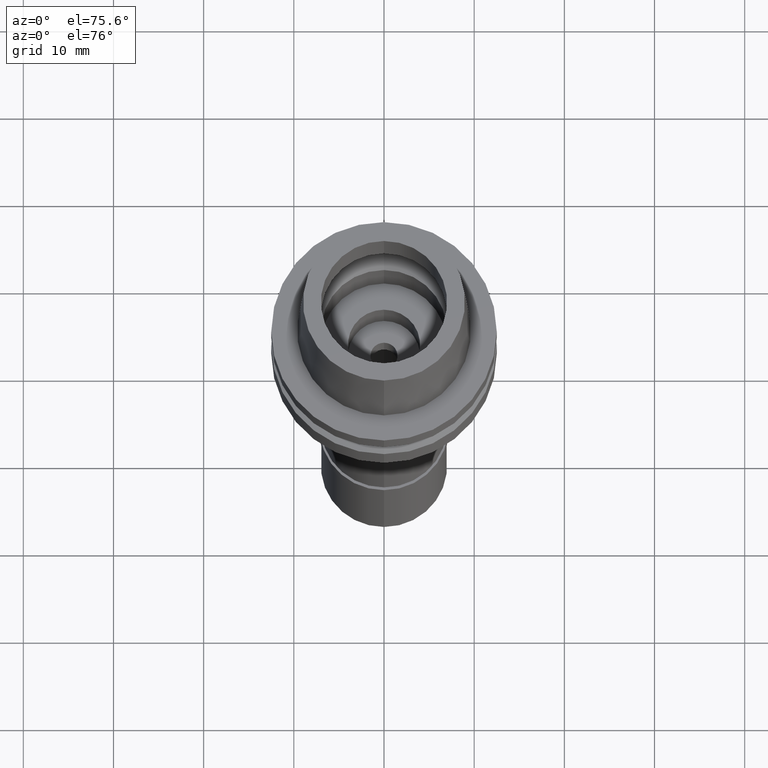
[diagram: clean part render]
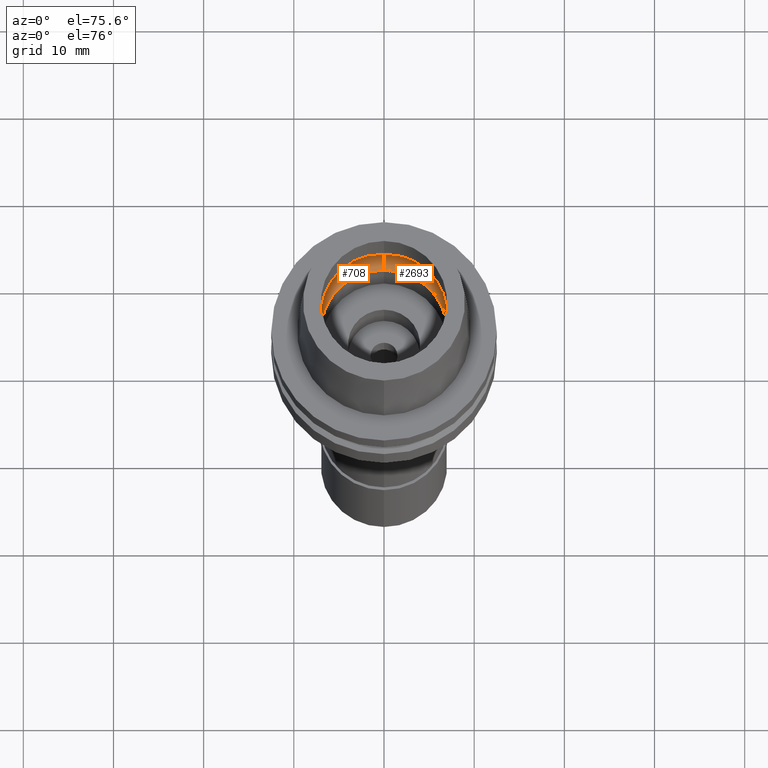
[diagram: same view with one multi-face feature highlighted, each face labeled with its STEP entity id]
A machine part, auxiliary view. The highlighted faces form ONE feature: a constant-radius fillet chain: 2 tangent blend faces with common blend radius 3 mm. The faces share edges in the B-rep.
Their STEP definitions:
[1] entity #2693 (Torus):
#4 = CARTESIAN_POINT ( 'NONE',  ( 0.0000000000000000000, 7.000000000000000000, 0.05000000000000000278 ) ) ;
#31 = ORIENTED_EDGE ( 'NONE', *, *, #655, .T. ) ;
#115 = AXIS2_PLACEMENT_3D ( 'NONE', #869, #1706, #856 ) ;
#137 = ORIENTED_EDGE ( 'NONE', *, *, #2144, .F. ) ;
#191 = CARTESIAN_POINT ( 'NONE',  ( 0.0000000000000000000, 5.200000000000000178, 2.449999999999999734 ) ) ;
#280 = AXIS2_PLACEMENT_3D ( 'NONE', #2355, #1104, #722 ) ;
#489 = CARTESIAN_POINT ( 'NONE',  ( 0.0000000000000000000, 0.0000000000000000000, 0.05000000000000000278 ) ) ;
#582 = VERTEX_POINT ( 'NONE', #2082 ) ;
#602 = CIRCLE ( 'NONE', #115, 8.200000000000001066 ) ;
#612 = CARTESIAN_POINT ( 'NONE',  ( 0.0000000000000000000, 8.200000000000001066, 2.449999999999999734 ) ) ;
#655 = EDGE_CURVE ( 'NONE', #1247, #582, #890, .T. ) ;
#684 = CARTESIAN_POINT ( 'NONE',  ( 0.0000000000000000000, -7.000000000000000000, 0.05000000000000000278 ) ) ;
#722 = DIRECTION ( 'NONE',  ( 0.0000000000000000000, 1.000000000000000000, 0.0000000000000000000 ) ) ;
#731 = CIRCLE ( 'NONE', #1065, 3.000000000000000000 ) ;
#825 = DIRECTION ( 'NONE',  ( 0.0000000000000000000, 0.5999999999999998668, -0.8000000000000001554 ) ) ;
#848 = DIRECTION ( 'NONE',  ( 1.000000000000000000, 0.0000000000000000000, 0.0000000000000000000 ) ) ;
#856 = DIRECTION ( 'NONE',  ( 0.0000000000000000000, 1.000000000000000000, 0.0000000000000000000 ) ) ;
#869 = CARTESIAN_POINT ( 'NONE',  ( 0.0000000000000000000, 0.0000000000000000000, 2.449999999999999734 ) ) ;
#890 = CIRCLE ( 'NONE', #1804, 3.000000000000000000 ) ;
#929 = FACE_OUTER_BOUND ( 'NONE', #2357, .T. ) ;
#1065 = AXIS2_PLACEMENT_3D ( 'NONE', #191, #848, #825 ) ;
#1096 = DIRECTION ( 'NONE',  ( 0.0000000000000000000, -0.5999999999999998668, -0.8000000000000001554 ) ) ;
#1104 = DIRECTION ( 'NONE',  ( 0.0000000000000000000, 0.0000000000000000000, 1.000000000000000000 ) ) ;
#1175 = VERTEX_POINT ( 'NONE', #4 ) ;
#1247 = VERTEX_POINT ( 'NONE', #684 ) ;
#1303 = DIRECTION ( 'NONE',  ( 0.0000000000000000000, 0.0000000000000000000, 1.000000000000000000 ) ) ;
#1597 = AXIS2_PLACEMENT_3D ( 'NONE', #489, #1303, #2349 ) ;
#1611 = EDGE_CURVE ( 'NONE', #1175, #1710, #731, .T. ) ;
#1693 = ORIENTED_EDGE ( 'NONE', *, *, #2040, .F. ) ;
#1706 = DIRECTION ( 'NONE',  ( 0.0000000000000000000, 0.0000000000000000000, -1.000000000000000000 ) ) ;
#1710 = VERTEX_POINT ( 'NONE', #612 ) ;
#1733 = CARTESIAN_POINT ( 'NONE',  ( 0.0000000000000000000, -5.200000000000000178, 2.449999999999999734 ) ) ;
#1804 = AXIS2_PLACEMENT_3D ( 'NONE', #1733, #1932, #1096 ) ;
#1932 = DIRECTION ( 'NONE',  ( -1.000000000000000000, 0.0000000000000000000, 0.0000000000000000000 ) ) ;
#2040 = EDGE_CURVE ( 'NONE', #1247, #1175, #2067, .T. ) ;
#2067 = CIRCLE ( 'NONE', #1597, 7.000000000000000000 ) ;
#2082 = CARTESIAN_POINT ( 'NONE',  ( 0.0000000000000000000, -8.200000000000001066, 2.449999999999999734 ) ) ;
#2144 = EDGE_CURVE ( 'NONE', #1710, #582, #602, .T. ) ;
#2200 = ORIENTED_EDGE ( 'NONE', *, *, #1611, .F. ) ;
#2349 = DIRECTION ( 'NONE',  ( 0.0000000000000000000, -1.000000000000000000, 0.0000000000000000000 ) ) ;
#2355 = CARTESIAN_POINT ( 'NONE',  ( 0.0000000000000000000, 0.0000000000000000000, 2.449999999999999734 ) ) ;
#2357 = EDGE_LOOP ( 'NONE', ( #1693, #31, #137, #2200 ) ) ;
#2459 = TOROIDAL_SURFACE ( 'NONE', #280, 5.200000000000000178, 3.000000000000000000 ) ;
#2693 = ADVANCED_FACE ( 'NONE', ( #929 ), #2459, .F. ) ;
[2] entity #708 (Torus):
#4 = CARTESIAN_POINT ( 'NONE',  ( 0.0000000000000000000, 7.000000000000000000, 0.05000000000000000278 ) ) ;
#184 = DIRECTION ( 'NONE',  ( 0.0000000000000000000, -1.000000000000000000, 0.0000000000000000000 ) ) ;
#191 = CARTESIAN_POINT ( 'NONE',  ( 0.0000000000000000000, 5.200000000000000178, 2.449999999999999734 ) ) ;
#276 = CIRCLE ( 'NONE', #759, 8.200000000000001066 ) ;
#360 = ORIENTED_EDGE ( 'NONE', *, *, #1142, .F. ) ;
#441 = CARTESIAN_POINT ( 'NONE',  ( 0.0000000000000000000, 0.0000000000000000000, 0.05000000000000000278 ) ) ;
#582 = VERTEX_POINT ( 'NONE', #2082 ) ;
#612 = CARTESIAN_POINT ( 'NONE',  ( 0.0000000000000000000, 8.200000000000001066, 2.449999999999999734 ) ) ;
#655 = EDGE_CURVE ( 'NONE', #1247, #582, #890, .T. ) ;
#669 = DIRECTION ( 'NONE',  ( 0.0000000000000000000, 1.000000000000000000, 0.0000000000000000000 ) ) ;
#684 = CARTESIAN_POINT ( 'NONE',  ( 0.0000000000000000000, -7.000000000000000000, 0.05000000000000000278 ) ) ;
#708 = ADVANCED_FACE ( 'NONE', ( #2347 ), #2556, .F. ) ;
#731 = CIRCLE ( 'NONE', #1065, 3.000000000000000000 ) ;
#733 = ORIENTED_EDGE ( 'NONE', *, *, #2586, .F. ) ;
#759 = AXIS2_PLACEMENT_3D ( 'NONE', #1430, #1215, #184 ) ;
#825 = DIRECTION ( 'NONE',  ( 0.0000000000000000000, 0.5999999999999998668, -0.8000000000000001554 ) ) ;
#848 = DIRECTION ( 'NONE',  ( 1.000000000000000000, 0.0000000000000000000, 0.0000000000000000000 ) ) ;
#890 = CIRCLE ( 'NONE', #1804, 3.000000000000000000 ) ;
#1065 = AXIS2_PLACEMENT_3D ( 'NONE', #191, #848, #825 ) ;
#1096 = DIRECTION ( 'NONE',  ( 0.0000000000000000000, -0.5999999999999998668, -0.8000000000000001554 ) ) ;
#1142 = EDGE_CURVE ( 'NONE', #1175, #1247, #2290, .T. ) ;
#1175 = VERTEX_POINT ( 'NONE', #4 ) ;
#1215 = DIRECTION ( 'NONE',  ( 0.0000000000000000000, 0.0000000000000000000, -1.000000000000000000 ) ) ;
#1247 = VERTEX_POINT ( 'NONE', #684 ) ;
#1285 = ORIENTED_EDGE ( 'NONE', *, *, #655, .F. ) ;
#1354 = CARTESIAN_POINT ( 'NONE',  ( 0.0000000000000000000, 0.0000000000000000000, 2.449999999999999734 ) ) ;
#1430 = CARTESIAN_POINT ( 'NONE',  ( 0.0000000000000000000, 0.0000000000000000000, 2.449999999999999734 ) ) ;
#1503 = EDGE_LOOP ( 'NONE', ( #733, #1285, #360, #2451 ) ) ;
#1567 = DIRECTION ( 'NONE',  ( 0.0000000000000000000, 1.000000000000000000, 0.0000000000000000000 ) ) ;
#1589 = AXIS2_PLACEMENT_3D ( 'NONE', #1354, #2374, #1567 ) ;
#1611 = EDGE_CURVE ( 'NONE', #1175, #1710, #731, .T. ) ;
#1710 = VERTEX_POINT ( 'NONE', #612 ) ;
#1733 = CARTESIAN_POINT ( 'NONE',  ( 0.0000000000000000000, -5.200000000000000178, 2.449999999999999734 ) ) ;
#1804 = AXIS2_PLACEMENT_3D ( 'NONE', #1733, #1932, #1096 ) ;
#1887 = DIRECTION ( 'NONE',  ( 0.0000000000000000000, 0.0000000000000000000, 1.000000000000000000 ) ) ;
#1932 = DIRECTION ( 'NONE',  ( -1.000000000000000000, 0.0000000000000000000, 0.0000000000000000000 ) ) ;
#2082 = CARTESIAN_POINT ( 'NONE',  ( 0.0000000000000000000, -8.200000000000001066, 2.449999999999999734 ) ) ;
#2290 = CIRCLE ( 'NONE', #2558, 7.000000000000000000 ) ;
#2347 = FACE_OUTER_BOUND ( 'NONE', #1503, .T. ) ;
#2374 = DIRECTION ( 'NONE',  ( 0.0000000000000000000, 0.0000000000000000000, 1.000000000000000000 ) ) ;
#2451 = ORIENTED_EDGE ( 'NONE', *, *, #1611, .T. ) ;
#2556 = TOROIDAL_SURFACE ( 'NONE', #1589, 5.200000000000000178, 3.000000000000000000 ) ;
#2558 = AXIS2_PLACEMENT_3D ( 'NONE', #441, #1887, #669 ) ;
#2586 = EDGE_CURVE ( 'NONE', #582, #1710, #276, .T. ) ;